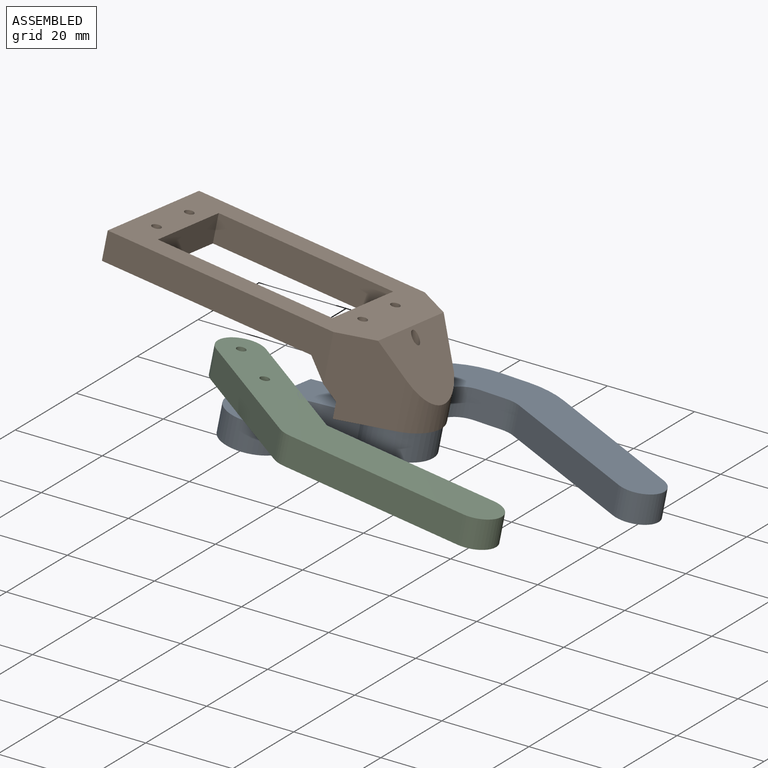
[diagram: assembled view]
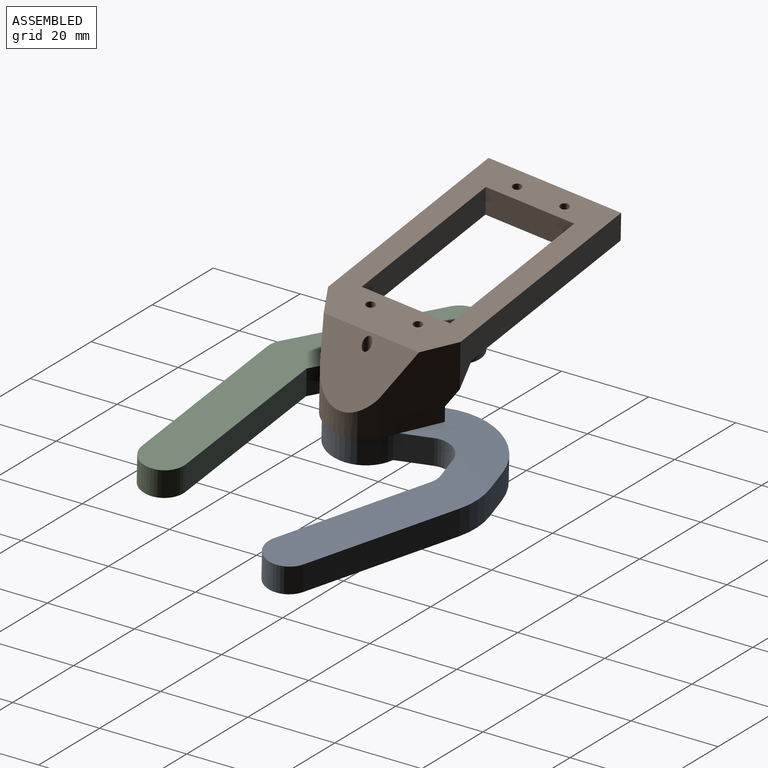
[diagram: assembled view, second angle]
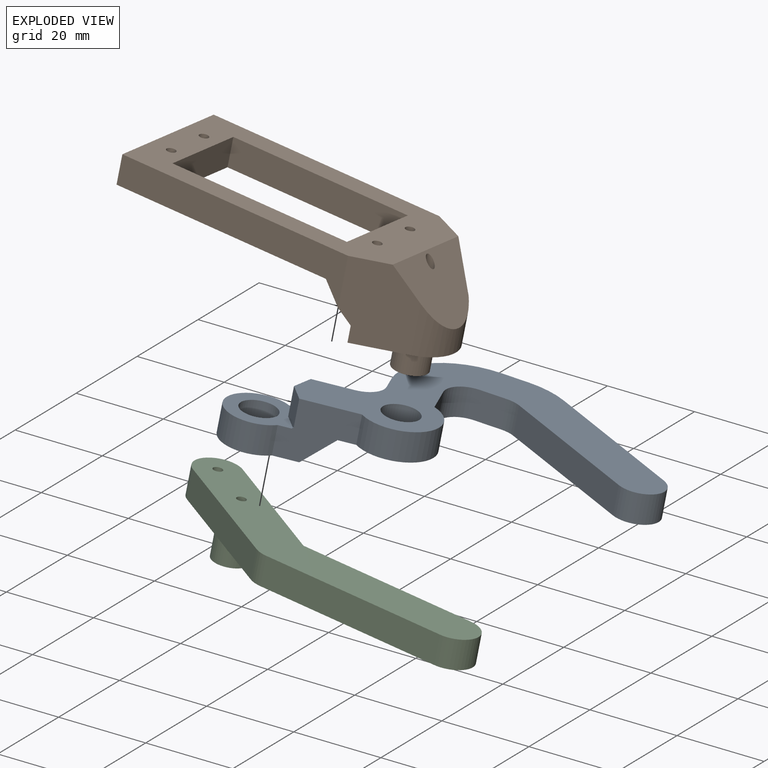
[diagram: exploded view]
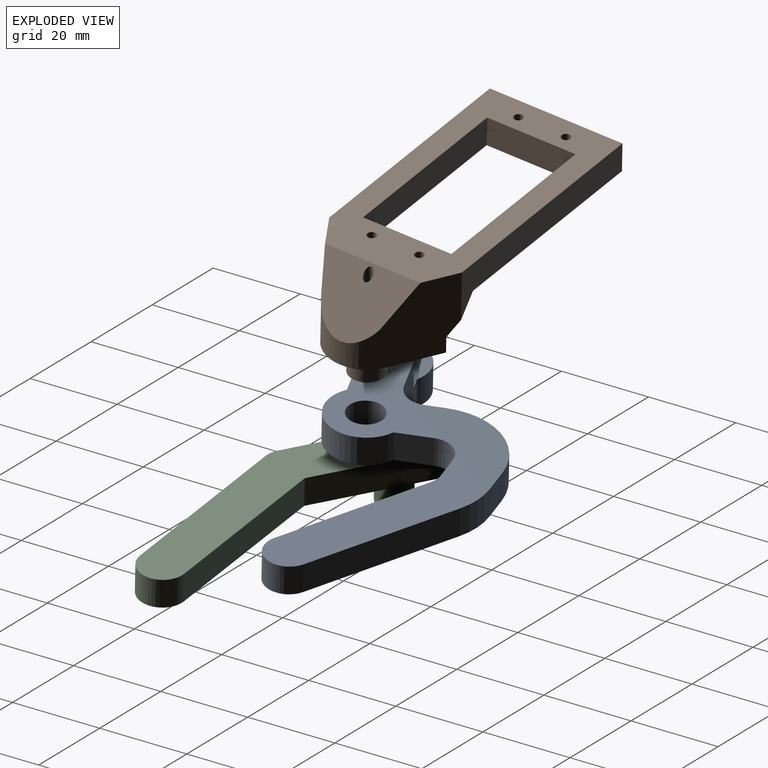
[diagram: exploded view, second angle]
ASSEMBLY  parts=3 mates=2
PART A: 27 faces, bbox 38.7x86.6x12.7 mm
  f0: plane 0.8x0.34mm, normal (0,-0.71,0.71), area 0.2mm2, adj f9,f15,f25
  f1: plane 0.8x0.34mm, normal (0,-0.71,0.71), area 0.2mm2, adj f10,f15,f26
  f2: plane 7.84x6.35mm, normal (0,1,0), area 49.8mm2, adj f4,f13,f19,f21
  f3: plane 17.15x13.97mm, normal (0,0,-1), area 143.7mm2, adj f9,f10,f14,f22,f23
  f4: plane 73.9x38.72mm, normal (0,0,1), area 1057.9mm2, adj f2,f5,f6,f7,f8,f9,f10,f11
  f5: cylinder r=5.08mm len=8.7mm, axis (0,0,-1), area 101.3mm2, adj f4,f6,f12,f13
  f6: plane 24.99x24.56mm, normal (-0.71,0.7,0), area 222.5mm2, adj f4,f5,f13,f16
  f7: plane 6.35x5.59mm, normal (-0.98,0.19,0), area 36.2mm2, adj f4,f13,f16,f17
  f8: plane 6.35x4.19mm, normal (0,-1,0), area 26.6mm2, adj f4,f13,f17,f18
  f9: plane 12.7x11.72mm, normal (-1,0,0), area 109.1mm2, adj f0,f3,f4,f14,f15,f18,f22,f25
  f10: plane 15.37x12.7mm, normal (1,0,0), area 132.3mm2, adj f1,f3,f4,f13,f14,f15,f21,f22
  f11: plane 6.35x5.59mm, normal (0.98,-0.19,0), area 36.2mm2, adj f4,f13,f19,f20
  f12: plane 24.99x24.56mm, normal (0.71,-0.7,0), area 222.5mm2, adj f4,f5,f13,f20
  f13: plane 63.11x38.72mm, normal (0,0,-1), area 959.1mm2, adj f2,f5,f6,f7,f8,f10,f11,f12
  f14: plane 10.16x6.35mm, normal (0,0.71,-0.71), area 91.2mm2, adj f3,f9,f10,f13
  f15: plane 14.51x13.97mm, normal (0,0,1), area 109.2mm2, adj f0,f1,f9,f10,f22,f23,f25,f26
  f16: cylinder r=15.24mm len=7.77mm, axis (0,0,-1), area 56.6mm2, adj f4,f6,f7,f13
  f17: cylinder r=15.24mm len=18.15mm, axis (0,0,-1), area 170.6mm2, adj f4,f7,f8,f13
  f18: cylinder r=5.08mm len=6.35mm, axis (0,0,1), area 50.7mm2, adj f4,f8,f9,f13
  f19: cylinder r=5.08mm len=6.35mm, axis (0,0,1), area 56.9mm2, adj f2,f4,f11,f13
  f20: cylinder r=5.08mm len=6.35mm, axis (0,0,1), area 18.9mm2, adj f4,f11,f12,f13
  f21: cylinder r=8.26mm len=14.76mm, axis (0,0,1), area 177.5mm2, adj f2,f4,f10,f13
  f22: cylinder r=6.99mm len=13.97mm, axis (0,0,1), area 206.4mm2, adj f3,f9,f10,f15
  f23: cylinder r=3.94mm len=7.87mm, axis (0,0,-1), area 157.1mm2, adj f3,f15
  f24: cylinder r=3.94mm len=7.87mm, axis (0,0,-1), area 157.1mm2, adj f4,f13
  f25: plane 6.35x5.08mm, normal (-0.39,-0.92,0), area 34.9mm2, adj f0,f4,f9,f15,f26
  f26: plane 6.35x5.08mm, normal (0.39,-0.92,0), area 34.9mm2, adj f1,f4,f10,f15,f25
PART B: 24 faces, bbox 70.7x31x24.4 mm
  f0: plane 27.5x15.07mm, normal (0,0,-1), area 229.7mm2, adj f6,f7,f8,f18,f20
  f1: plane 60.01x30.48mm, normal (0,0,1), area 958.2mm2, adj f2,f3,f4,f5,f6,f8,f9,f10
  f2: plane 20.32x6.35mm, normal (-1,0,0), area 129mm2, adj f1,f3,f14,f16
  f3: plane 40.64x6.35mm, normal (0,1,0), area 258.1mm2, adj f1,f2,f4,f15
  f4: plane 20.32x6.35mm, normal (1,0,0), area 129mm2, adj f1,f3,f14,f15
  f5: plane 52.57x10.89mm, normal (0,-1,0), area 342.4mm2, adj f1,f6,f15,f16,f17
  f6: plane 17.53x13.17mm, normal (0.5,-0.87,0), area 228.1mm2, adj f0,f1,f5,f7,f16,f18,f19
  f7: cylinder r=8.89mm len=14.47mm, axis (0,0,1), area 118.2mm2, adj f0,f6,f8,f19
  f8: plane 17.53x14.54mm, normal (0.5,0.86,0), area 245.1mm2, adj f0,f1,f7,f13,f16,f18,f19
  f9: cylinder r=1.02mm len=6.35mm, axis (0,0,1), area 40.5mm2, adj f1,f15
  f10: cylinder r=1.02mm len=6.35mm, axis (0,0,1), area 40.5mm2, adj f1,f15
  f11: cylinder r=1.02mm len=12.1mm, axis (0,0,1), area 69.5mm2, adj f1,f16
  f12: cylinder r=1.02mm len=12.1mm, axis (0,0,1), area 69.5mm2, adj f1,f16
  f13: plane 52.57x10.89mm, normal (0,1,0), area 342.4mm2, adj f1,f8,f15,f16,f17
  f14: plane 40.64x6.35mm, normal (0,-1,0), area 258.1mm2, adj f1,f2,f4,f15
  f15: plane 48.76x30.48mm, normal (0,0,-1), area 653.8mm2, adj f3,f4,f5,f9,f10,f13,f14,f16
  f16: plane 30.99x8.13mm, normal (-0.77,0,-0.64), area 287.1mm2, adj f2,f5,f6,f8,f11,f12,f13,f15
  f17: plane 30.48x6.35mm, normal (-1,0,0), area 193.5mm2, adj f1,f5,f13,f15
  f18: plane 27.5x3.56mm, normal (-1,0,0), area 97.8mm2, adj f0,f6,f8,f16
  f19: plane 22.4x12.68mm, normal (0.77,0,0.64), area 236.7mm2, adj f1,f6,f7,f8,f22
  f20: cylinder r=3.81mm len=7.62mm, axis (0,0,1), area 152mm2, adj f0,f21
  f21: plane 7.62x7.62mm, normal (0,0,-1), area 37.7mm2, adj f20,f23
  f22: cylinder r=1.02mm len=22.7mm, axis (0,0,-1), area 137.2mm2, adj f19,f23
  f23: cone r=1.02mm half-angle=41deg, axis (0,0,-1), area 7.1mm2, adj f21,f22
PART C: 14 faces, bbox 32.9x78.1x12.7 mm
  f0: plane 33.69x22.73mm, normal (-0.83,0.56,0), area 258.1mm2, adj f1,f6,f7,f8
  f1: cylinder r=5.08mm len=6.35mm, axis (0,0,-1), area 19.1mm2, adj f0,f2,f7,f8
  f2: plane 34.29x6.35mm, normal (-1,0,0), area 217.7mm2, adj f1,f3,f7,f8
  f3: cylinder r=5.08mm len=10.16mm, axis (0,0,-1), area 101.3mm2, adj f2,f4,f7,f8
  f4: plane 32.74x6.35mm, normal (1,0,0), area 207.9mm2, adj f3,f5,f7,f8
  f5: plane 32.4x21.86mm, normal (0.83,-0.56,0), area 248.2mm2, adj f4,f6,f7,f8
  f6: cylinder r=5.08mm len=9.29mm, axis (0,0,-1), area 101.3mm2, adj f0,f5,f7,f8
  f7: plane 78.14x32.89mm, normal (0,0,1), area 793.3mm2, adj f0,f1,f2,f3,f4,f5,f6,f9
  f8: plane 78.14x32.89mm, normal (0,0,-1), area 835.6mm2, adj f0,f1,f2,f3,f4,f5,f6,f11
  f9: cylinder r=3.81mm len=7.62mm, axis (0,0,-1), area 152mm2, adj f7,f10
  f10: plane 7.62x7.62mm, normal (0,0,1), area 37.7mm2, adj f9,f12
  f11: cylinder r=1.02mm len=12.04mm, axis (0,0,1), area 76.9mm2, adj f8,f12
  f12: cone r=1.02mm half-angle=41deg, axis (0,0,1), area 7.1mm2, adj f10,f11
  f13: cylinder r=1.02mm len=6.35mm, axis (0,0,-1), area 40.5mm2, adj f7,f8
PLACE A rot(axis=(-0.15,0.04,-0.99),68.2deg) t=(-6.67,13.32,-33.87)mm
PLACE B rot(axis=(-0.64,0.77,0),10deg) t=(-0.94,26.79,-5.48)mm
PLACE C rot(axis=(0.88,0.47,-0.09),177.9deg) t=(12.78,2.51,-22.38)mm
MATE revolute B.f20 <-> A.f21  axis (0.13,0.11,0.98) through (18.96,24.31,-28.91)mm
MATE revolute C.f9 <-> A.f23  axis (0.13,0.11,0.98) through (-6.25,13.68,-30.74)mm
